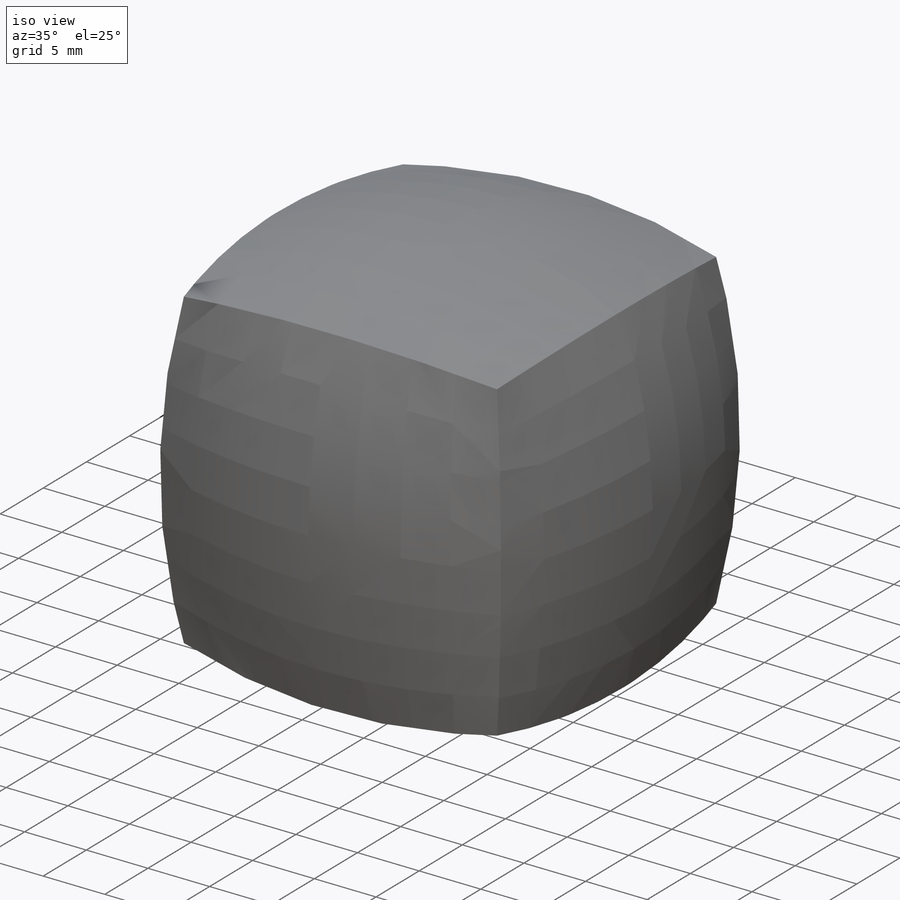
[diagram: iso view]
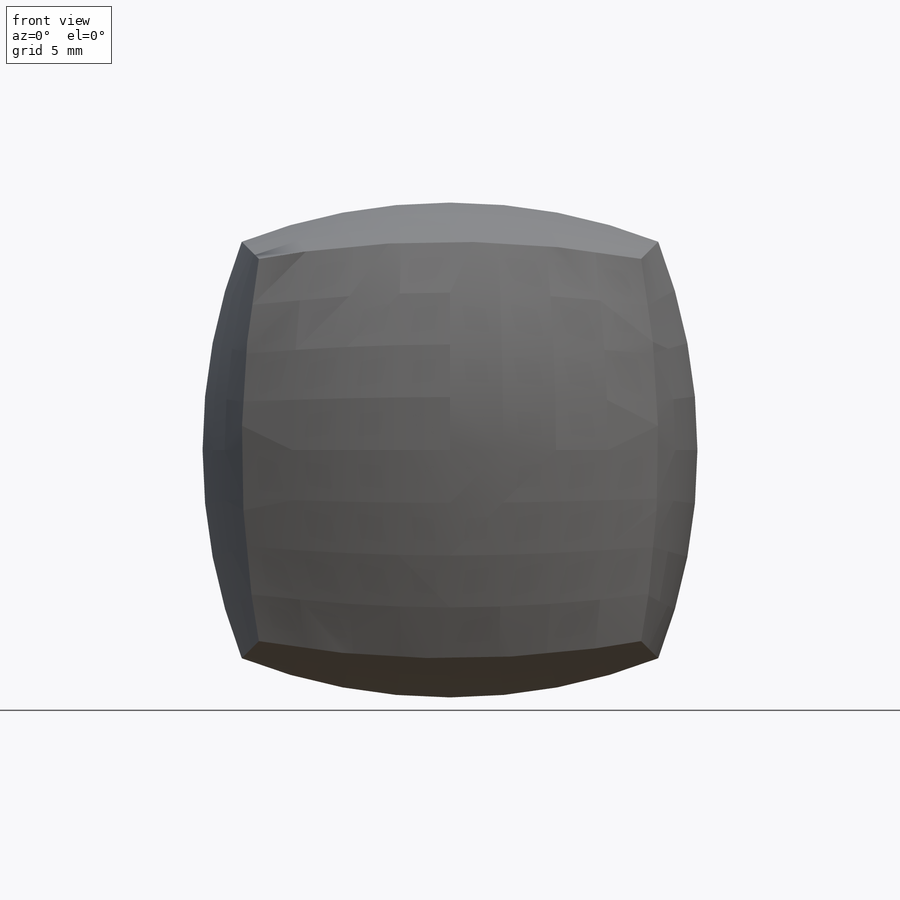
[diagram: front view]
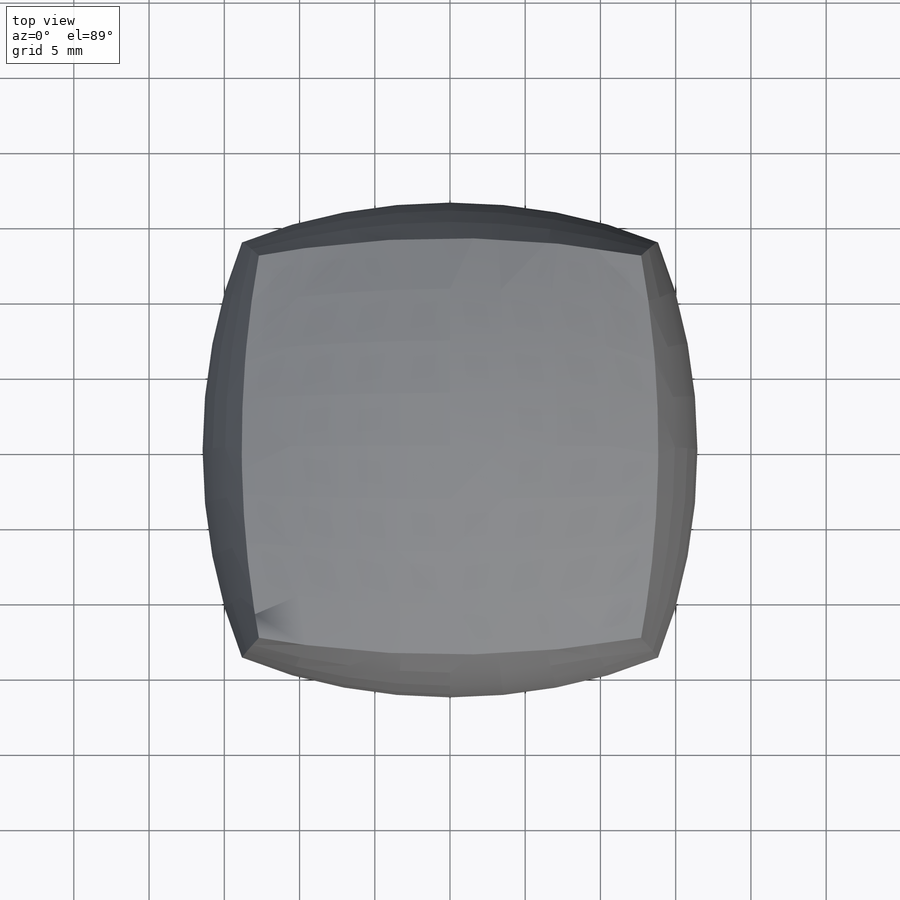
[diagram: top view]
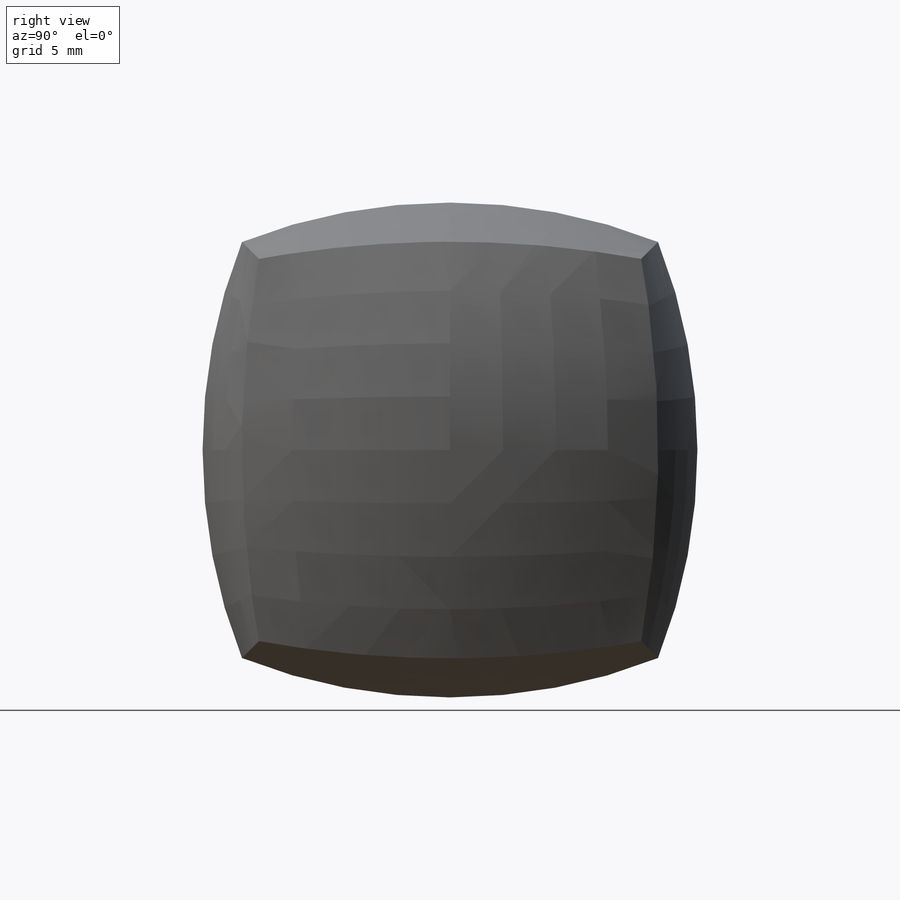
[diagram: right view]
SOLIDWORKS PART (.sldprt)
format: sldprt  version: not decoded by parser v0  size: 302,592 bytes
history: native  units: mm
features: sketch x7, plane x4, pattern_circular x2, material x1, extrude x1, boolean_combine x1 (+14 scaffold rows collapsed)
feature tree (30):
  scaffold x14  (default folders/planes/origin — collapsed)
  material  "Material <not specified>"
  sketch  "Sketch1"  dims[link1=25.4mm D2=~75.208654mm]
  extrude  "Base Feature"  [1 undecoded]
  plane  "Plane1"
  plane  "Plane2"
  sketch  "guide2"  dims[D1=50.8mm]
  sketch  "guide3"  dims[D1=50.8mm]
  sketch  "profile2"  dims[D1=38.1mm]
  plane  "Plane3"
  plane  "Plane4"
  sketch  "profile1"  dims[D1=50.8mm]
  sketch  "profile3"  dims[D1=50.8mm]
  sketch  "guide1"  dims[D1=~117.035312mm]
  pattern_circular  "CirPattern1"  Count=4 Angle=360deg
  pattern_circular  "CirPattern2"  Count=4 Angle=360deg
  boolean_combine  "Combine1"
decode coverage: 9 of 11 modeling features carry decoded parameters
note: ~ marks probable driven/reference dimensions
note: 1 parameter value undecoded
note: suppression state not decoded; provenance and decode notes live in map.json
